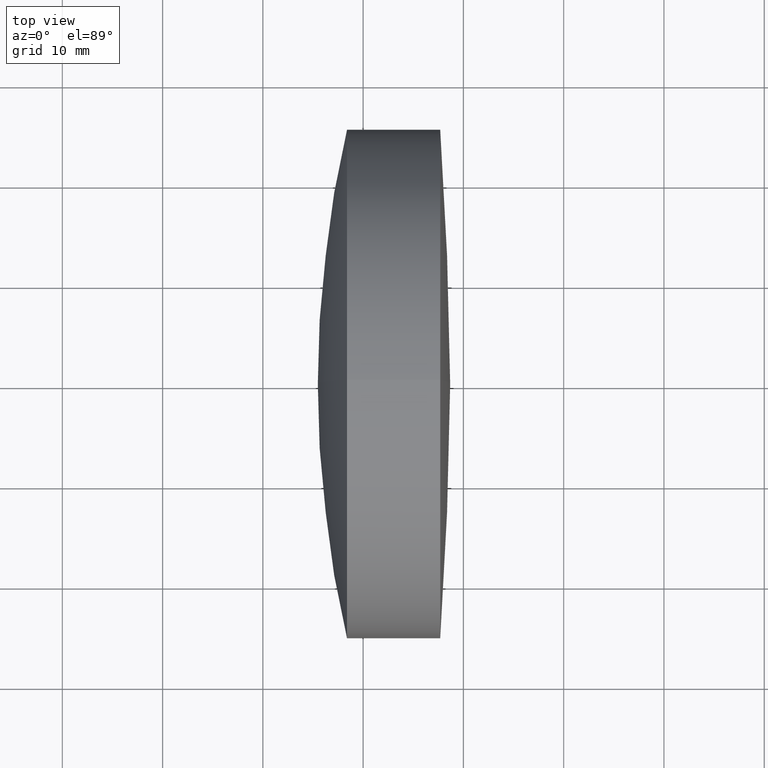
[diagram: clean part render]
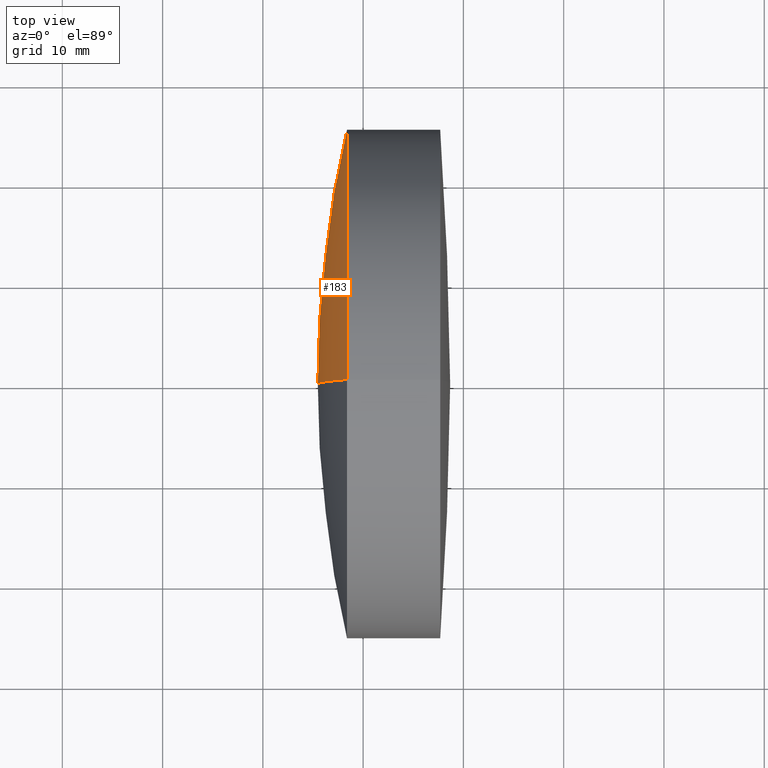
[diagram: same view with one face highlighted and labeled with its STEP entity id]
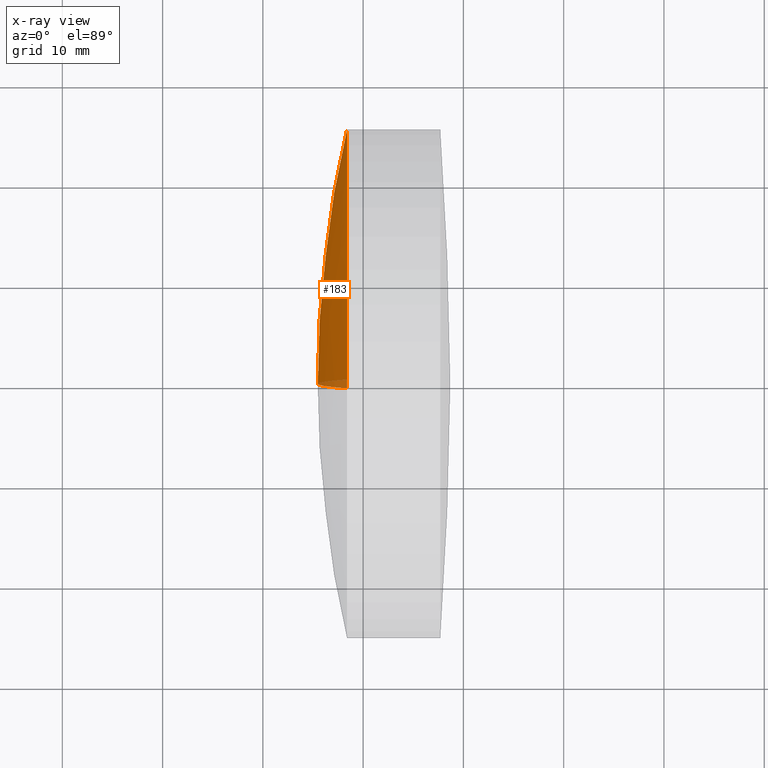
[diagram: x-ray of the same camera — body ghosted, the highlighted face saturated]
A machine part, top view. The second image highlights one B-rep face of the part: STEP entity #183.
The next image is the same camera in x-ray: the body ghosted, the highlighted face saturated — about 3% of this face is hidden behind the body in this view.
In plain terms, the highlighted spherical surface has radius 112.2 mm.
Its self-contained STEP definition (entity closure, byte-faithful):
#7 = CARTESIAN_POINT ( 'NONE',  ( 657.6805592743230600, 0.0000000000000000000, -8.998188785850827300E-015 ) ) ;
#13 = AXIS2_PLACEMENT_3D ( 'NONE', #343, #135, #202 ) ;
#22 = CARTESIAN_POINT ( 'NONE',  ( 545.4805592743229000, 0.0000000000000000000, -2.127920242634172300E-015 ) ) ;
#29 = DIRECTION ( 'NONE',  ( 0.0000000000000000000, -1.224646799147353500E-016, 1.000000000000000000 ) ) ;
#46 = SPHERICAL_SURFACE ( 'NONE', #317, 112.2000000000000600 ) ;
#49 = VERTEX_POINT ( 'NONE', #22 ) ;
#74 = AXIS2_PLACEMENT_3D ( 'NONE', #85, #299, #29 ) ;
#81 = VERTEX_POINT ( 'NONE', #226 ) ;
#85 = CARTESIAN_POINT ( 'NONE',  ( 657.6805592743230600, 0.0000000000000000000, -8.998188785850827300E-015 ) ) ;
#92 = CIRCLE ( 'NONE', #74, 112.2000000000000600 ) ;
#107 = ORIENTED_EDGE ( 'NONE', *, *, #297, .T. ) ;
#117 = VERTEX_POINT ( 'NONE', #258 ) ;
#135 = DIRECTION ( 'NONE',  ( -1.000000000000000000, -0.0000000000000000000, -0.0000000000000000000 ) ) ;
#173 = DIRECTION ( 'NONE',  ( 0.0000000000000000000, 1.000000000000000000, 0.0000000000000000000 ) ) ;
#181 = ORIENTED_EDGE ( 'NONE', *, *, #207, .T. ) ;
#182 = DIRECTION ( 'NONE',  ( 0.0000000000000000000, -1.000000000000000000, 0.0000000000000000000 ) ) ;
#183 = ADVANCED_FACE ( 'NONE', ( #293 ), #46, .T. ) ;
#193 = ORIENTED_EDGE ( 'NONE', *, *, #205, .F. ) ;
#194 = CARTESIAN_POINT ( 'NONE',  ( 657.6805592743230600, 0.0000000000000000000, -8.998188785850827300E-015 ) ) ;
#202 = DIRECTION ( 'NONE',  ( 0.0000000000000000000, 0.0000000000000000000, 1.000000000000000000 ) ) ;
#205 = EDGE_CURVE ( 'NONE', #81, #49, #329, .T. ) ;
#207 = EDGE_CURVE ( 'NONE', #117, #49, #92, .T. ) ;
#226 = CARTESIAN_POINT ( 'NONE',  ( 548.3934145591277900, 0.0000000000000000000, 25.39999999999999100 ) ) ;
#236 = DIRECTION ( 'NONE',  ( 0.0000000000000000000, 0.0000000000000000000, 1.000000000000000000 ) ) ;
#258 = CARTESIAN_POINT ( 'NONE',  ( 548.3934145591277900, 3.110602869834276500E-015, -25.40000000000000600 ) ) ;
#283 = CIRCLE ( 'NONE', #13, 25.39999999999998800 ) ;
#293 = FACE_OUTER_BOUND ( 'NONE', #298, .T. ) ;
#297 = EDGE_CURVE ( 'NONE', #81, #117, #283, .T. ) ;
#298 = EDGE_LOOP ( 'NONE', ( #107, #181, #193 ) ) ;
#299 = DIRECTION ( 'NONE',  ( -0.0000000000000000000, 1.000000000000000000, 1.224646799147353200E-016 ) ) ;
#313 = AXIS2_PLACEMENT_3D ( 'NONE', #7, #182, #332 ) ;
#317 = AXIS2_PLACEMENT_3D ( 'NONE', #194, #173, #236 ) ;
#329 = CIRCLE ( 'NONE', #313, 112.2000000000000600 ) ;
#332 = DIRECTION ( 'NONE',  ( 0.0000000000000000000, 0.0000000000000000000, -1.000000000000000000 ) ) ;
#343 = CARTESIAN_POINT ( 'NONE',  ( 548.3934145591277900, 0.0000000000000000000, 0.0000000000000000000 ) ) ;